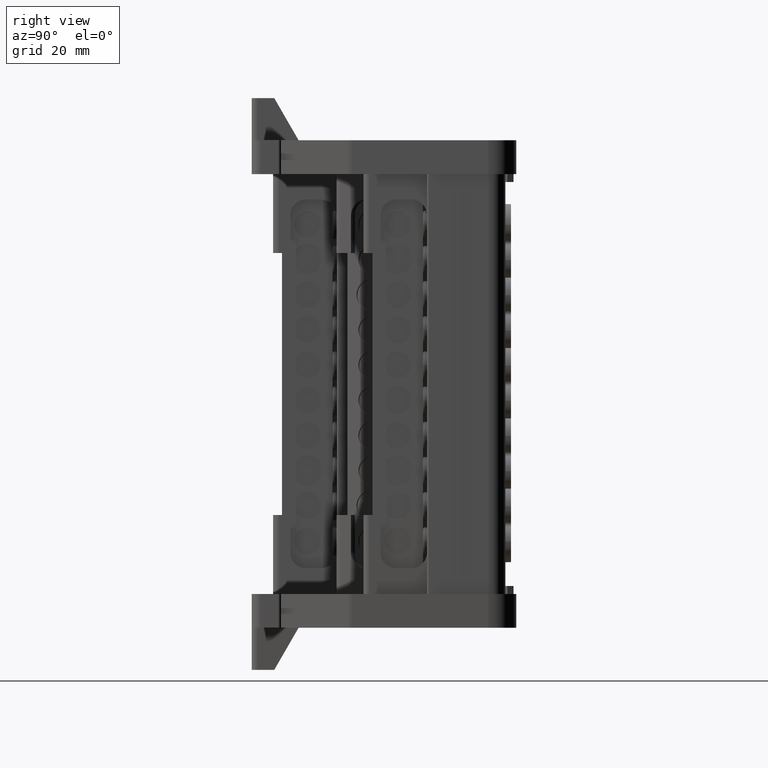
[diagram: clean part render]
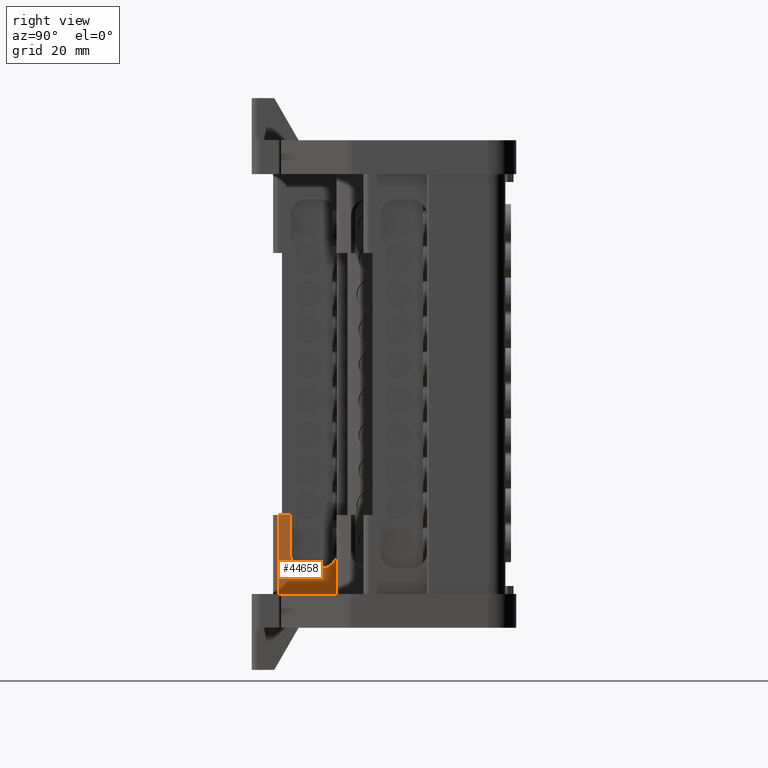
[diagram: same view with one face highlighted and labeled with its STEP entity id]
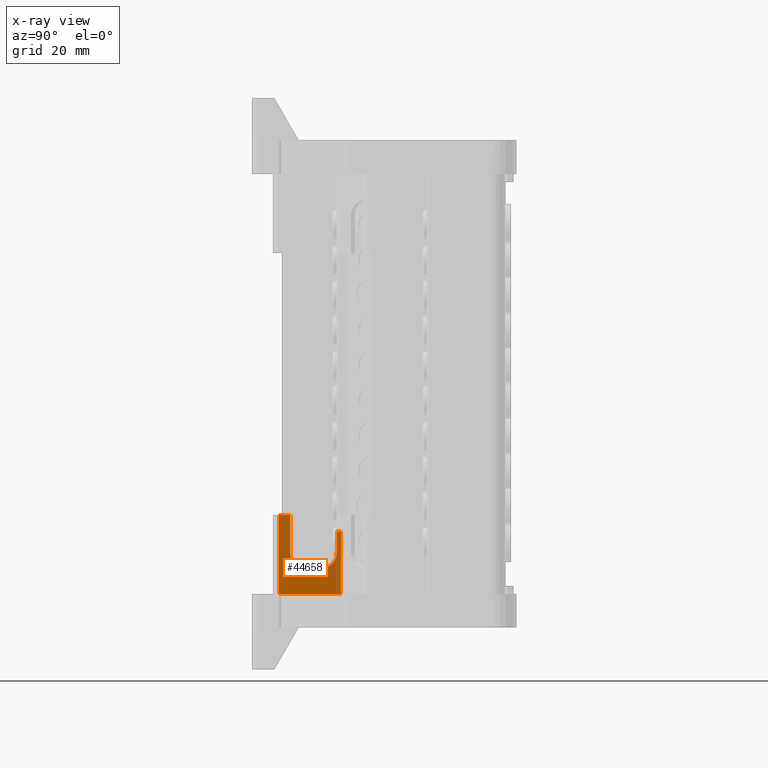
[diagram: x-ray of the same camera — body ghosted, the highlighted face saturated]
A machine part, right view. The second image highlights one B-rep face of the part: STEP entity #44658.
The next image is the same camera in x-ray: the body ghosted, the highlighted face saturated — about 11% of this face is hidden behind the body in this view.
In plain terms, the highlighted planar face has unit normal (1, 0, 0).
Its self-contained STEP definition (entity closure, byte-faithful):
#8620 = EDGE_LOOP ( 'NONE', ( #47096, #47112, #46975, #47078, #47148, #47152, #46963, #47084, #47064, #47158 ) ) ;
#13710 = VECTOR ( 'NONE', #16517, 1000.000000000000000 ) ;
#16517 = DIRECTION ( 'NONE',  ( -1.453177907011995900E-013, 1.000000000000000000, 0.0000000000000000000 ) ) ;
#16520 = LINE ( 'NONE', #16549, #13710 ) ;
#16549 = CARTESIAN_POINT ( 'NONE',  ( -315.5541928424962100, 188.0222401173098500, 25.71293318655201800 ) ) ;
#27735 = AXIS2_PLACEMENT_3D ( 'NONE', #73785, #73807, #73811 ) ;
#33526 = VECTOR ( 'NONE', #35294, 1000.000000000000000 ) ;
#33535 = VECTOR ( 'NONE', #35371, 1000.000000000000000 ) ;
#33538 = VECTOR ( 'NONE', #35284, 1000.000000000000000 ) ;
#33567 = VECTOR ( 'NONE', #35394, 1000.000000000000000 ) ;
#33573 = CIRCLE ( 'NONE', #33667, 2.772233137074919800 ) ;
#33593 = VECTOR ( 'NONE', #35484, 1000.000000000000000 ) ;
#33632 = VECTOR ( 'NONE', #34339, 1000.000000000000000 ) ;
#33637 = AXIS2_PLACEMENT_3D ( 'NONE', #35423, #35420, #35429 ) ;
#33649 = CIRCLE ( 'NONE', #33637, 2.772233137074919800 ) ;
#33667 = AXIS2_PLACEMENT_3D ( 'NONE', #35503, #35504, #35505 ) ;
#33765 = VECTOR ( 'NONE', #34499, 1000.000000000000000 ) ;
#34293 = LINE ( 'NONE', #34295, #33632 ) ;
#34295 = CARTESIAN_POINT ( 'NONE',  ( -315.5541928424962100, 188.0222401173098500, 36.80186573485246300 ) ) ;
#34339 = DIRECTION ( 'NONE',  ( 1.453177907011995900E-013, -1.000000000000000000, -0.0000000000000000000 ) ) ;
#34499 = DIRECTION ( 'NONE',  ( 1.453177907011995900E-013, -1.000000000000000000, -0.0000000000000000000 ) ) ;
#34533 = LINE ( 'NONE', #34539, #33765 ) ;
#34539 = CARTESIAN_POINT ( 'NONE',  ( -315.5541928424962100, 188.0222401173098500, 30.26131569283588300 ) ) ;
#35272 = CARTESIAN_POINT ( 'NONE',  ( -315.5541928424967800, 191.8765687929108300, 109.3940505351306700 ) ) ;
#35274 = LINE ( 'NONE', #35272, #33538 ) ;
#35284 = DIRECTION ( 'NONE',  ( 3.469446950784519200E-018, 5.041723658430199000E-031, -1.000000000000000000 ) ) ;
#35287 = LINE ( 'NONE', #35292, #33526 ) ;
#35292 = CARTESIAN_POINT ( 'NONE',  ( -315.5541928424983700, 202.9411402240583900, 109.3940505351306700 ) ) ;
#35294 = DIRECTION ( 'NONE',  ( -3.469446950784519200E-018, -5.041723658430199000E-031, 1.000000000000000000 ) ) ;
#35328 = CARTESIAN_POINT ( 'NONE',  ( -315.5541928424962100, 188.0222401173098500, 39.73149045965976000 ) ) ;
#35350 = LINE ( 'NONE', #35328, #33535 ) ;
#35371 = DIRECTION ( 'NONE',  ( 1.453177907011995900E-013, -1.000000000000000000, -0.0000000000000000000 ) ) ;
#35393 = CARTESIAN_POINT ( 'NONE',  ( -315.5541928424982500, 202.1661899151492300, 109.3940505351306700 ) ) ;
#35394 = DIRECTION ( 'NONE',  ( 3.469446950784519200E-018, 5.041723658430199000E-031, -1.000000000000000000 ) ) ;
#35411 = LINE ( 'NONE', #35393, #33567 ) ;
#35420 = DIRECTION ( 'NONE',  ( -1.000000000000000000, -1.453177907011995900E-013, -3.469446950784519600E-018 ) ) ;
#35423 = CARTESIAN_POINT ( 'NONE',  ( -315.5541928424971200, 196.6774389858468600, 33.03354882991079200 ) ) ;
#35429 = DIRECTION ( 'NONE',  ( -1.401678861067244600E-013, 1.000000000000000000, 0.0000000000000000000 ) ) ;
#35449 = LINE ( 'NONE', #35474, #33593 ) ;
#35474 = CARTESIAN_POINT ( 'NONE',  ( -315.5541928424970000, 193.9052058487720000, 109.3940505351306700 ) ) ;
#35484 = DIRECTION ( 'NONE',  ( -3.469446950784519200E-018, -5.041723658430199000E-031, 1.000000000000000000 ) ) ;
#35503 = CARTESIAN_POINT ( 'NONE',  ( -315.5541928424977400, 199.3939567780748000, 33.03354882991079200 ) ) ;
#35504 = DIRECTION ( 'NONE',  ( -1.000000000000000000, -1.453177907011995900E-013, -3.469446950784519600E-018 ) ) ;
#35505 = DIRECTION ( 'NONE',  ( -1.401678861067244600E-013, 1.000000000000000000, 0.0000000000000000000 ) ) ;
#40419 = EDGE_CURVE ( 'NONE', #64319, #64341, #16520, .T. ) ;
#44658 = ADVANCED_FACE ( 'NONE', ( #73757 ), #73795, .T. ) ;
#46963 = ORIENTED_EDGE ( 'NONE', *, *, #102533, .T. ) ;
#46975 = ORIENTED_EDGE ( 'NONE', *, *, #40419, .T. ) ;
#47064 = ORIENTED_EDGE ( 'NONE', *, *, #102503, .T. ) ;
#47078 = ORIENTED_EDGE ( 'NONE', *, *, #102484, .T. ) ;
#47084 = ORIENTED_EDGE ( 'NONE', *, *, #102580, .T. ) ;
#47096 = ORIENTED_EDGE ( 'NONE', *, *, #102490, .T. ) ;
#47112 = ORIENTED_EDGE ( 'NONE', *, *, #102482, .T. ) ;
#47148 = ORIENTED_EDGE ( 'NONE', *, *, #102545, .T. ) ;
#47152 = ORIENTED_EDGE ( 'NONE', *, *, #102500, .T. ) ;
#47158 = ORIENTED_EDGE ( 'NONE', *, *, #102515, .T. ) ;
#64302 = VERTEX_POINT ( 'NONE', #110334 ) ;
#64307 = VERTEX_POINT ( 'NONE', #110338 ) ;
#64319 = VERTEX_POINT ( 'NONE', #110315 ) ;
#64326 = VERTEX_POINT ( 'NONE', #110342 ) ;
#64341 = VERTEX_POINT ( 'NONE', #110352 ) ;
#64347 = VERTEX_POINT ( 'NONE', #110298 ) ;
#64360 = VERTEX_POINT ( 'NONE', #110354 ) ;
#64365 = VERTEX_POINT ( 'NONE', #110398 ) ;
#64395 = VERTEX_POINT ( 'NONE', #110397 ) ;
#64398 = VERTEX_POINT ( 'NONE', #110409 ) ;
#73757 = FACE_OUTER_BOUND ( 'NONE', #8620, .T. ) ;
#73785 = CARTESIAN_POINT ( 'NONE',  ( -315.5541928424962100, 188.0222401173098500, 109.3940505351306700 ) ) ;
#73795 = PLANE ( 'NONE',  #27735 ) ;
#73807 = DIRECTION ( 'NONE',  ( 1.000000000000000000, 1.453177907011995900E-013, 3.469446950784519200E-018 ) ) ;
#73811 = DIRECTION ( 'NONE',  ( -1.453177907011995900E-013, 1.000000000000000000, 0.0000000000000000000 ) ) ;
#102482 = EDGE_CURVE ( 'NONE', #64307, #64319, #35274, .T. ) ;
#102484 = EDGE_CURVE ( 'NONE', #64341, #64398, #35287, .T. ) ;
#102490 = EDGE_CURVE ( 'NONE', #64302, #64307, #35350, .T. ) ;
#102500 = EDGE_CURVE ( 'NONE', #64365, #64395, #35411, .T. ) ;
#102503 = EDGE_CURVE ( 'NONE', #64326, #64360, #33649, .T. ) ;
#102515 = EDGE_CURVE ( 'NONE', #64360, #64302, #35449, .T. ) ;
#102533 = EDGE_CURVE ( 'NONE', #64395, #64347, #33573, .T. ) ;
#102545 = EDGE_CURVE ( 'NONE', #64398, #64365, #34293, .T. ) ;
#102580 = EDGE_CURVE ( 'NONE', #64347, #64326, #34533, .T. ) ;
#110298 = CARTESIAN_POINT ( 'NONE',  ( -315.5541928424978000, 199.3939567780745700, 30.26131569283587900 ) ) ;
#110315 = CARTESIAN_POINT ( 'NONE',  ( -315.5541928424967800, 191.8765687929108300, 25.71293318655201100 ) ) ;
#110334 = CARTESIAN_POINT ( 'NONE',  ( -315.5541928424970000, 193.9052058487720000, 39.73149045965976000 ) ) ;
#110338 = CARTESIAN_POINT ( 'NONE',  ( -315.5541928424967800, 191.8765687929108300, 39.73149045965976000 ) ) ;
#110342 = CARTESIAN_POINT ( 'NONE',  ( -315.5541928424972900, 196.6774389858468900, 30.26131569283588300 ) ) ;
#110352 = CARTESIAN_POINT ( 'NONE',  ( -315.5541928424982000, 202.9411402240583600, 25.71293318655207800 ) ) ;
#110354 = CARTESIAN_POINT ( 'NONE',  ( -315.5541928424968900, 193.9052058487719700, 33.03354882991084200 ) ) ;
#110397 = CARTESIAN_POINT ( 'NONE',  ( -315.5541928424981400, 202.1661899151494600, 33.03354882991079200 ) ) ;
#110398 = CARTESIAN_POINT ( 'NONE',  ( -315.5541928424980800, 202.1661899151492300, 36.80186573485246300 ) ) ;
#110409 = CARTESIAN_POINT ( 'NONE',  ( -315.5541928424982500, 202.9411402240584200, 36.80186573485247000 ) ) ;